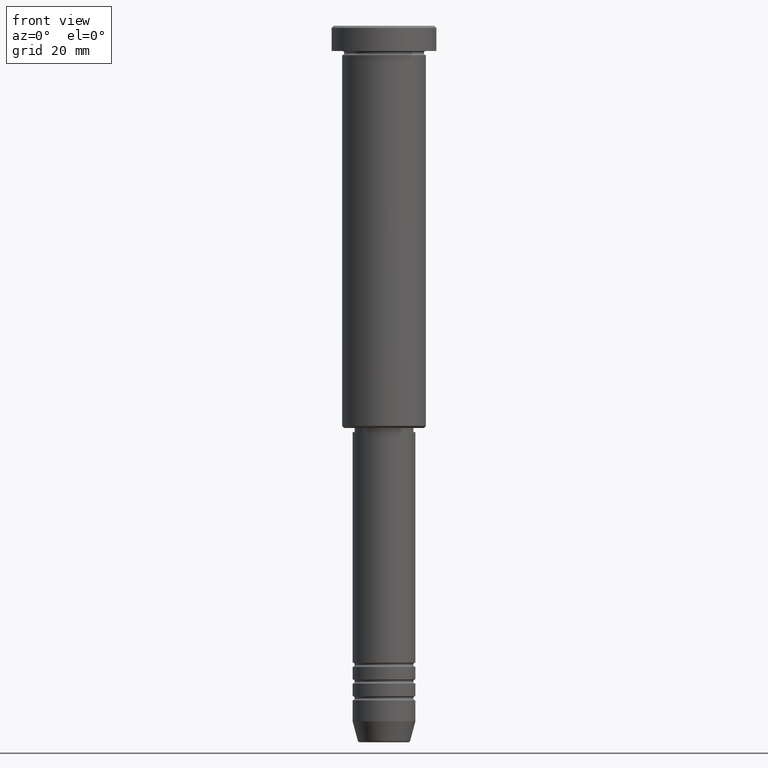
[diagram: clean part render]
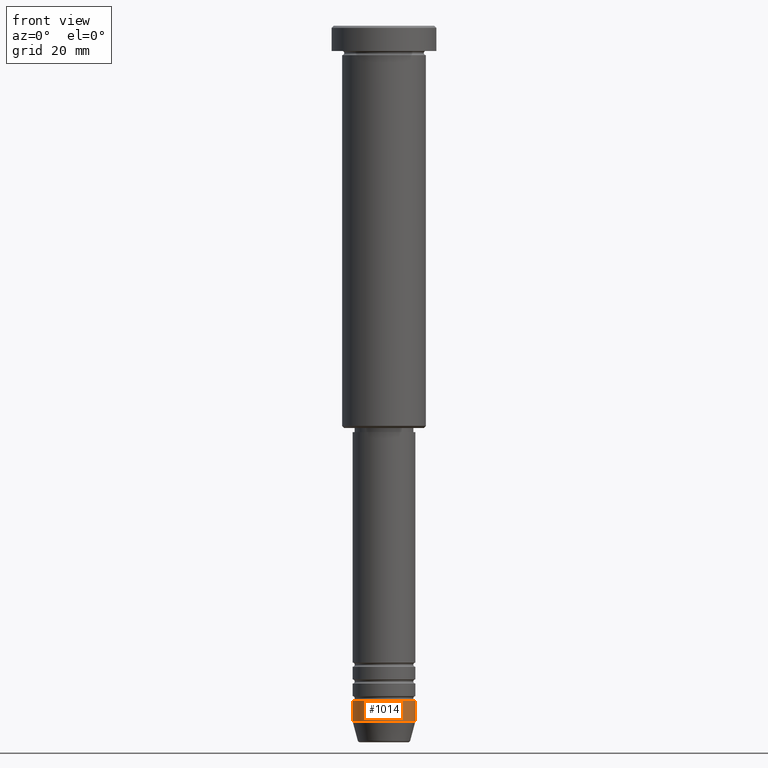
[diagram: same view with one face highlighted and labeled with its STEP entity id]
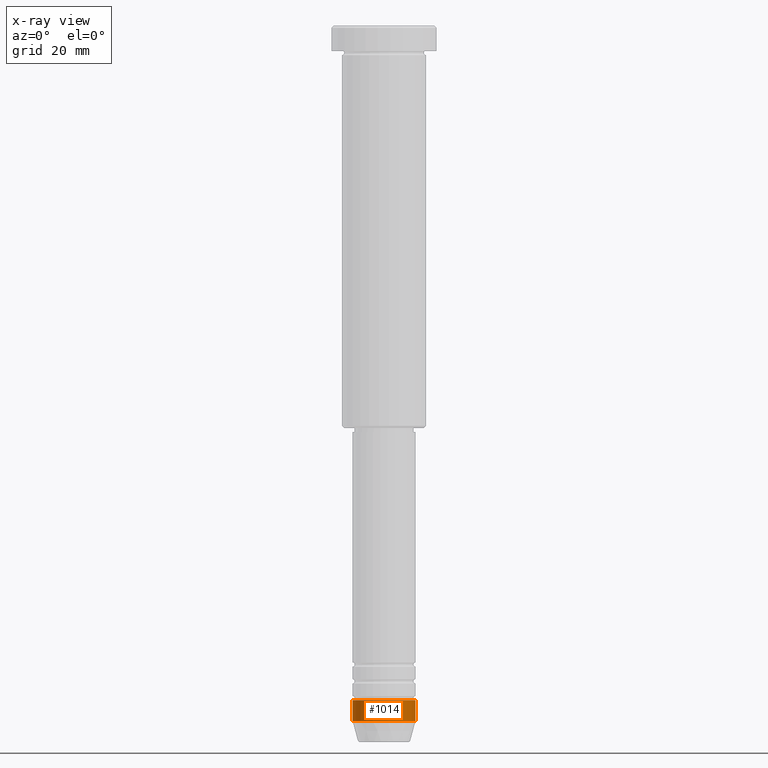
[diagram: x-ray of the same camera — body ghosted, the highlighted face saturated]
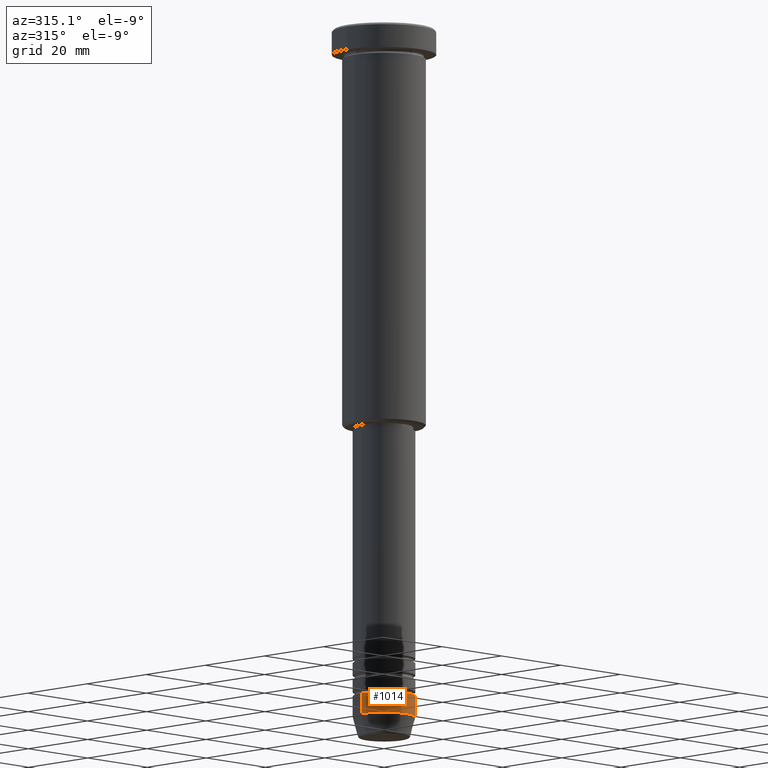
[diagram: same view with one face highlighted and labeled with its STEP entity id]
A machine part, front view. The second image highlights one B-rep face of the part: STEP entity #1014.
The next image is the same camera in x-ray: the body ghosted, the highlighted face saturated — about 0% of this face is hidden behind the body in this view.
A second angle (auxiliary view) of the same face is appended — the face is thin or edge-on in the first view.
In plain terms, the highlighted cylindrical surface (edge-blend (fillet) strip) has radius 7.5 mm, axis along (-0, -0, 1).
Its self-contained STEP definition (entity closure, byte-faithful):
#12 = AXIS2_PLACEMENT_3D ( 'NONE', #842, #399, #312 ) ;
#58 = EDGE_LOOP ( 'NONE', ( #870, #1129, #1066, #961 ) ) ;
#100 = CARTESIAN_POINT ( 'NONE',  ( 0.000000000000000000, 0.000000000000000000, -160.9999999999999716 ) ) ;
#110 = VECTOR ( 'NONE', #770, 1000.000000000000000 ) ;
#177 = EDGE_CURVE ( 'NONE', #197, #670, #498, .T. ) ;
#197 = VERTEX_POINT ( 'NONE', #422 ) ;
#267 = LINE ( 'NONE', #1082, #953 ) ;
#291 = VERTEX_POINT ( 'NONE', #374 ) ;
#312 = DIRECTION ( 'NONE',  ( 1.000000000000000000, 0.000000000000000000, 0.000000000000000000 ) ) ;
#363 = AXIS2_PLACEMENT_3D ( 'NONE', #815, #994, #975 ) ;
#366 = DIRECTION ( 'NONE',  ( -0.000000000000000000, -0.000000000000000000, 1.000000000000000000 ) ) ;
#374 = CARTESIAN_POINT ( 'NONE',  ( -7.500000000000000000, 9.184850993605147944E-16, -160.9999999999999716 ) ) ;
#399 = DIRECTION ( 'NONE',  ( -0.000000000000000000, -0.000000000000000000, 1.000000000000000000 ) ) ;
#402 = DIRECTION ( 'NONE',  ( 1.000000000000000000, 0.000000000000000000, 0.000000000000000000 ) ) ;
#411 = CARTESIAN_POINT ( 'NONE',  ( 7.500000000000000000, 0.000000000000000000, 0.000000000000000000 ) ) ;
#422 = CARTESIAN_POINT ( 'NONE',  ( 7.500000000000000000, 0.000000000000000000, -165.9999999999999716 ) ) ;
#440 = CIRCLE ( 'NONE', #12, 7.500000000000000000 ) ;
#464 = CARTESIAN_POINT ( 'NONE',  ( 7.500000000000000000, 0.000000000000000000, -160.9999999999999716 ) ) ;
#498 = LINE ( 'NONE', #411, #110 ) ;
#535 = AXIS2_PLACEMENT_3D ( 'NONE', #100, #765, #402 ) ;
#610 = CIRCLE ( 'NONE', #535, 7.500000000000000000 ) ;
#632 = FACE_OUTER_BOUND ( 'NONE', #58, .T. ) ;
#670 = VERTEX_POINT ( 'NONE', #464 ) ;
#765 = DIRECTION ( 'NONE',  ( -0.000000000000000000, -0.000000000000000000, 1.000000000000000000 ) ) ;
#770 = DIRECTION ( 'NONE',  ( -0.000000000000000000, -0.000000000000000000, 1.000000000000000000 ) ) ;
#815 = CARTESIAN_POINT ( 'NONE',  ( 0.000000000000000000, 0.000000000000000000, 0.000000000000000000 ) ) ;
#842 = CARTESIAN_POINT ( 'NONE',  ( 0.000000000000000000, 0.000000000000000000, -165.9999999999999716 ) ) ;
#852 = EDGE_CURVE ( 'NONE', #907, #197, #440, .T. ) ;
#870 = ORIENTED_EDGE ( 'NONE', *, *, #1068, .F. ) ;
#888 = CYLINDRICAL_SURFACE ( 'NONE', #363, 7.500000000000000000 ) ;
#907 = VERTEX_POINT ( 'NONE', #1015 ) ;
#953 = VECTOR ( 'NONE', #366, 1000.000000000000000 ) ;
#961 = ORIENTED_EDGE ( 'NONE', *, *, #1145, .F. ) ;
#975 = DIRECTION ( 'NONE',  ( 1.000000000000000000, 0.000000000000000000, 0.000000000000000000 ) ) ;
#994 = DIRECTION ( 'NONE',  ( -0.000000000000000000, -0.000000000000000000, 1.000000000000000000 ) ) ;
#1014 = ADVANCED_FACE ( 'NONE', ( #632 ), #888, .T. ) ;
#1015 = CARTESIAN_POINT ( 'NONE',  ( -7.500000000000000000, 9.184850993605147944E-16, -165.9999999999999716 ) ) ;
#1066 = ORIENTED_EDGE ( 'NONE', *, *, #177, .T. ) ;
#1068 = EDGE_CURVE ( 'NONE', #907, #291, #267, .T. ) ;
#1082 = CARTESIAN_POINT ( 'NONE',  ( -7.500000000000000000, 9.184850993605147944E-16, 0.000000000000000000 ) ) ;
#1129 = ORIENTED_EDGE ( 'NONE', *, *, #852, .T. ) ;
#1145 = EDGE_CURVE ( 'NONE', #291, #670, #610, .T. ) ;